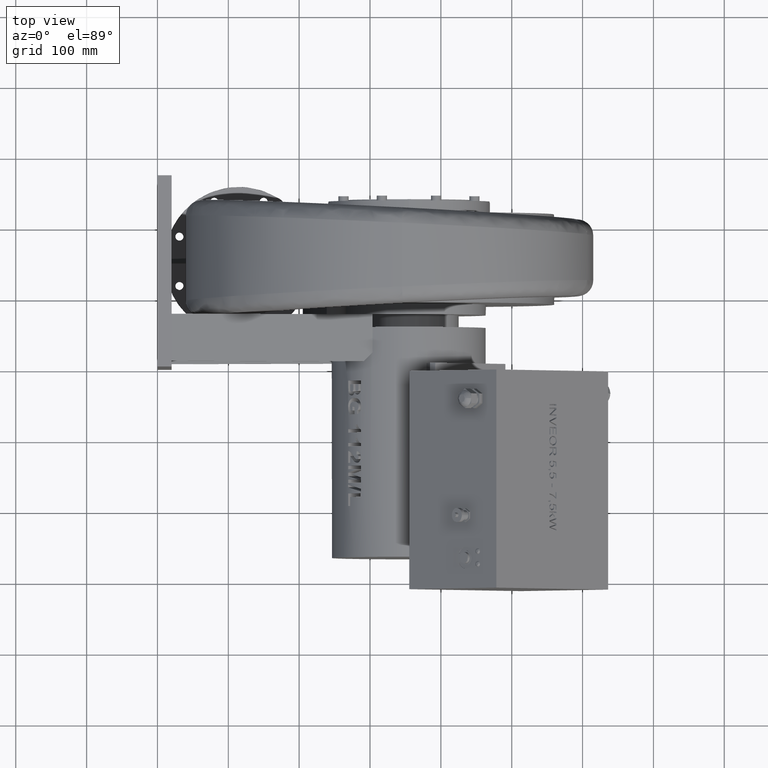
[diagram: clean part render]
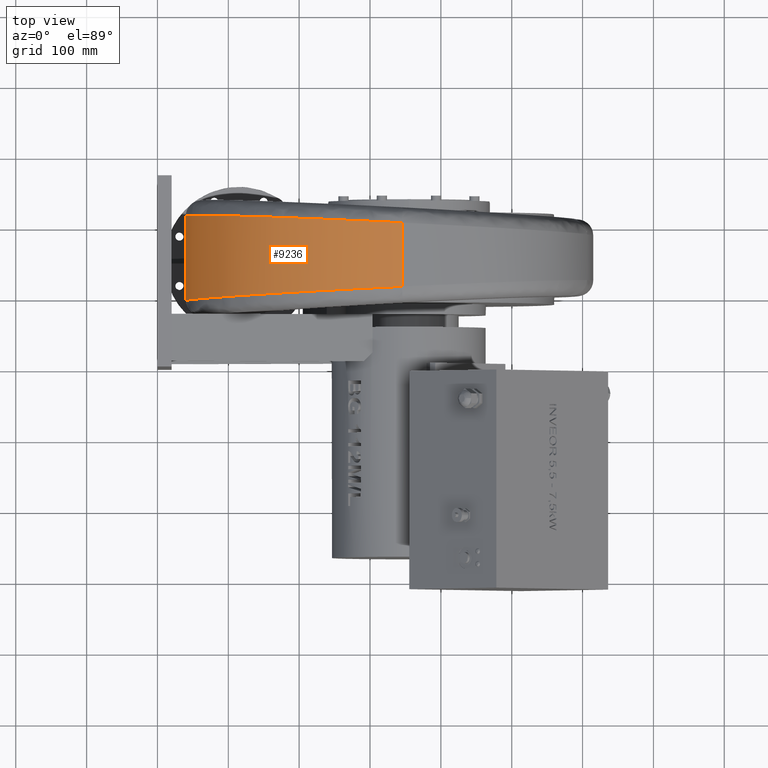
[diagram: same view with one face highlighted and labeled with its STEP entity id]
A machine part, top view. The second image highlights one B-rep face of the part: STEP entity #9236.
In plain terms, the highlighted cylindrical surface (partial cylindrical patch) has radius 305 mm, axis along (-0, 1, -0).
Its self-contained STEP definition (entity closure, byte-faithful):
#8505=CARTESIAN_POINT('',(39.999999999998614,187.49999999999997,-159.99999999999969));
#8506=VERTEX_POINT('',#8505);
#8514=CARTESIAN_POINT('',(39.999999999998614,215.29833918734127,-159.99999999999969));
#8515=VERTEX_POINT('',#8514);
#8516=CARTESIAN_POINT('',(39.999999999998622,187.49999999999994,-159.99999999999969));
#8517=DIRECTION('',(0.0,1.0,0.0));
#8518=VECTOR('',#8517,27.798339187341327);
#8519=LINE('',#8516,#8518);
#8520=EDGE_CURVE('',#8506,#8515,#8519,.T.);
#8904=CARTESIAN_POINT('',(344.99999999999858,200.46693765024054,145.00000000000028));
#8905=VERTEX_POINT('',#8904);
#8906=CARTESIAN_POINT('',(344.99999999999858,200.46693765024048,-159.99999999999972));
#8907=DIRECTION('',(0.048570154508642,0.9988197735783,-1.252777E-016));
#8908=DIRECTION('',(-0.9988197735783,0.048570154508642,5.520790E-017));
#8909=AXIS2_PLACEMENT_3D('',#8906,#8907,#8908);
#8910=ELLIPSE('',#8909,305.36039440561814,304.99999999999994);
#8911=EDGE_CURVE('',#8515,#8905,#8910,.T.);
#9150=CARTESIAN_POINT('',(344.99999999999864,110.53306234975994,145.00000000000028));
#9151=VERTEX_POINT('',#9150);
#9152=CARTESIAN_POINT('',(344.99999999999858,200.46693765024051,145.00000000000028));
#9153=DIRECTION('',(0.0,-1.0,0.0));
#9154=VECTOR('',#9153,89.933875300480565);
#9155=LINE('',#9152,#9154);
#9156=EDGE_CURVE('',#8905,#9151,#9155,.T.);
#9195=CARTESIAN_POINT('',(344.99999999999864,155.5000000000002,-159.99999999999972));
#9196=DIRECTION('',(-8.150498E-016,1.0,-1.224647E-016));
#9197=DIRECTION('',(-1.0,0.0,0.0));
#9198=AXIS2_PLACEMENT_3D('',#9195,#9196,#9197);
#9199=CYLINDRICAL_SURFACE('',#9198,305.0);
#9200=ORIENTED_EDGE('',*,*,#8911,.F.);
#9201=ORIENTED_EDGE('',*,*,#8520,.F.);
#9202=CARTESIAN_POINT('',(39.99999999999865,155.49999999999989,-159.99999999999969));
#9203=VERTEX_POINT('',#9202);
#9204=CARTESIAN_POINT('',(39.99999999999865,155.49999999999989,-159.99999999999969));
#9205=DIRECTION('',(0.0,1.0,0.0));
#9206=VECTOR('',#9205,32.000000000000057);
#9207=LINE('',#9204,#9206);
#9208=EDGE_CURVE('',#9203,#8506,#9207,.T.);
#9209=ORIENTED_EDGE('',*,*,#9208,.F.);
#9210=CARTESIAN_POINT('',(39.999999999998685,123.49999999999994,-159.99999999999969));
#9211=VERTEX_POINT('',#9210);
#9212=CARTESIAN_POINT('',(39.999999999998678,123.49999999999994,-159.99999999999969));
#9213=DIRECTION('',(0.0,1.0,0.0));
#9214=VECTOR('',#9213,31.999999999999943);
#9215=LINE('',#9212,#9214);
#9216=EDGE_CURVE('',#9211,#9203,#9215,.T.);
#9217=ORIENTED_EDGE('',*,*,#9216,.F.);
#9218=CARTESIAN_POINT('',(39.999999999998685,95.701660812658645,-159.99999999999969));
#9219=VERTEX_POINT('',#9218);
#9220=CARTESIAN_POINT('',(39.999999999998678,123.49999999999994,-159.99999999999969));
#9221=DIRECTION('',(0.0,-1.0,0.0));
#9222=VECTOR('',#9221,27.798339187341327);
#9223=LINE('',#9220,#9222);
#9224=EDGE_CURVE('',#9211,#9219,#9223,.T.);
#9225=ORIENTED_EDGE('',*,*,#9224,.T.);
#9226=CARTESIAN_POINT('',(344.99999999999875,110.53306234975992,-159.99999999999972));
#9227=DIRECTION('',(0.048570154508644,-0.9988197735783,1.193626E-016));
#9228=DIRECTION('',(-0.9988197735783,-0.048570154508644,6.710416E-017));
#9229=AXIS2_PLACEMENT_3D('',#9226,#9227,#9228);
#9230=ELLIPSE('',#9229,305.36039440561819,305.0);
#9231=EDGE_CURVE('',#9151,#9219,#9230,.T.);
#9232=ORIENTED_EDGE('',*,*,#9231,.F.);
#9233=ORIENTED_EDGE('',*,*,#9156,.F.);
#9234=EDGE_LOOP('',(#9200,#9201,#9209,#9217,#9225,#9232,#9233));
#9235=FACE_OUTER_BOUND('',#9234,.T.);
#9236=ADVANCED_FACE('',(#9235),#9199,.T.);